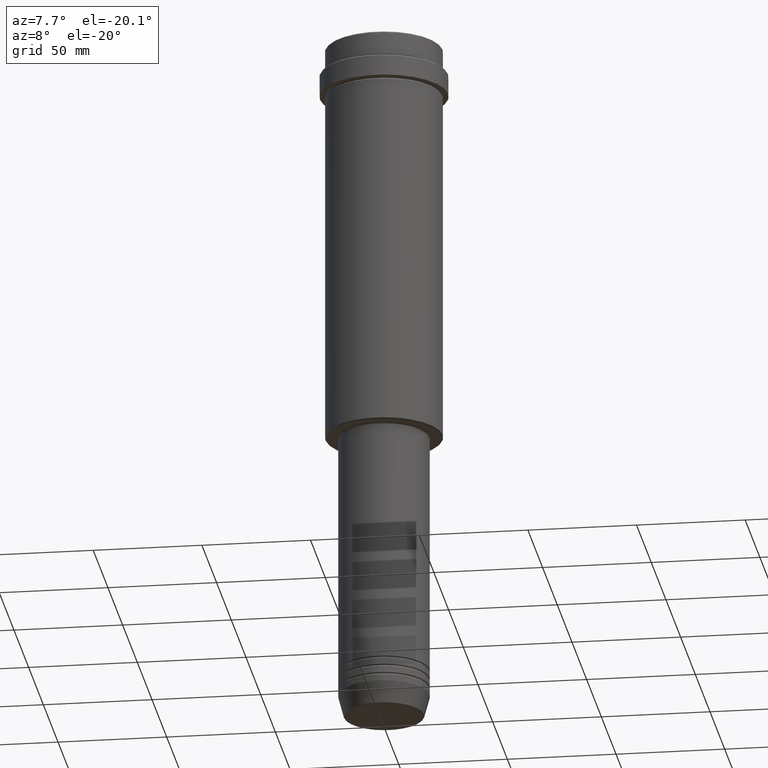
[diagram: clean part render]
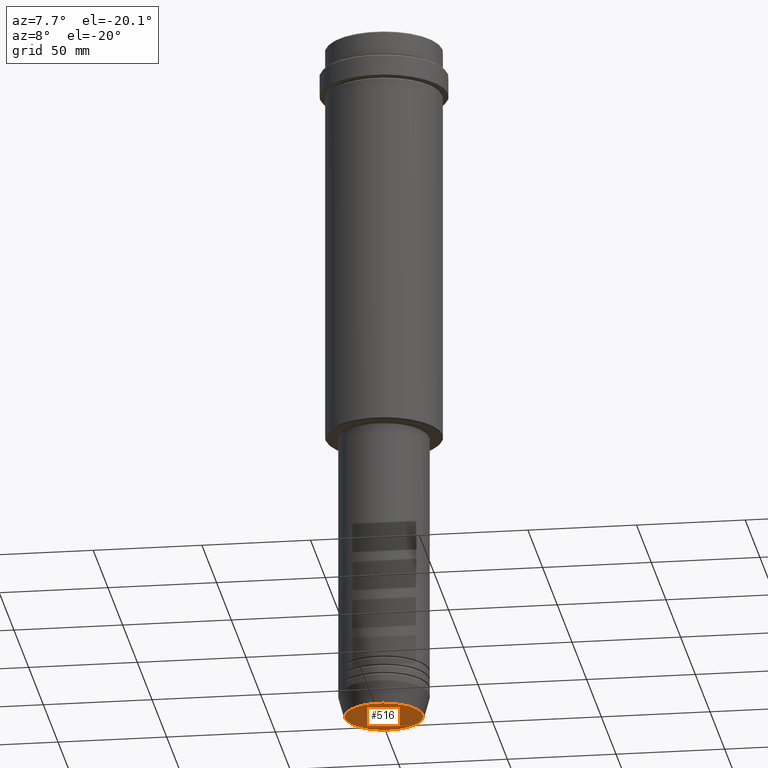
[diagram: same view with one face highlighted and labeled with its STEP entity id]
A machine part, auxiliary view. The second image highlights one B-rep face of the part: STEP entity #516.
In plain terms, the highlighted planar face has unit normal (0, -0, 1).
Its self-contained STEP definition (entity closure, byte-faithful):
#13 = CIRCLE ( 'NONE', #992, 17.93684458169929030 ) ;
#102 = DIRECTION ( 'NONE',  ( 0.000000000000000000, 0.000000000000000000, -1.000000000000000000 ) ) ;
#106 = FACE_OUTER_BOUND ( 'NONE', #907, .T. ) ;
#108 = VERTEX_POINT ( 'NONE', #425 ) ;
#116 = EDGE_CURVE ( 'NONE', #108, #831, #13, .T. ) ;
#145 = AXIS2_PLACEMENT_3D ( 'NONE', #750, #539, #1410 ) ;
#164 = CARTESIAN_POINT ( 'NONE',  ( -17.93684458169929030, 2.226202879662625134E-15, -323.0000000000000000 ) ) ;
#326 = CARTESIAN_POINT ( 'NONE',  ( 0.000000000000000000, 0.000000000000000000, -323.0000000000000000 ) ) ;
#425 = CARTESIAN_POINT ( 'NONE',  ( 17.93684458169929030, 0.000000000000000000, -323.0000000000000000 ) ) ;
#479 = CIRCLE ( 'NONE', #999, 17.93684458169929030 ) ;
#516 = ADVANCED_FACE ( 'NONE', ( #106 ), #1276, .F. ) ;
#522 = ORIENTED_EDGE ( 'NONE', *, *, #603, .T. ) ;
#539 = DIRECTION ( 'NONE',  ( 0.000000000000000000, -0.000000000000000000, 1.000000000000000000 ) ) ;
#551 = CARTESIAN_POINT ( 'NONE',  ( 0.000000000000000000, 0.000000000000000000, -323.0000000000000000 ) ) ;
#603 = EDGE_CURVE ( 'NONE', #831, #108, #479, .T. ) ;
#750 = CARTESIAN_POINT ( 'NONE',  ( 0.000000000000000000, 0.000000000000000000, -323.0000000000000000 ) ) ;
#769 = DIRECTION ( 'NONE',  ( 0.000000000000000000, 0.000000000000000000, -1.000000000000000000 ) ) ;
#786 = ORIENTED_EDGE ( 'NONE', *, *, #116, .T. ) ;
#831 = VERTEX_POINT ( 'NONE', #164 ) ;
#907 = EDGE_LOOP ( 'NONE', ( #786, #522 ) ) ;
#968 = DIRECTION ( 'NONE',  ( 1.000000000000000000, 0.000000000000000000, 0.000000000000000000 ) ) ;
#992 = AXIS2_PLACEMENT_3D ( 'NONE', #551, #102, #968 ) ;
#999 = AXIS2_PLACEMENT_3D ( 'NONE', #326, #769, #1196 ) ;
#1196 = DIRECTION ( 'NONE',  ( 1.000000000000000000, 0.000000000000000000, 0.000000000000000000 ) ) ;
#1276 = PLANE ( 'NONE',  #145 ) ;
#1410 = DIRECTION ( 'NONE',  ( 1.000000000000000000, 0.000000000000000000, 0.000000000000000000 ) ) ;